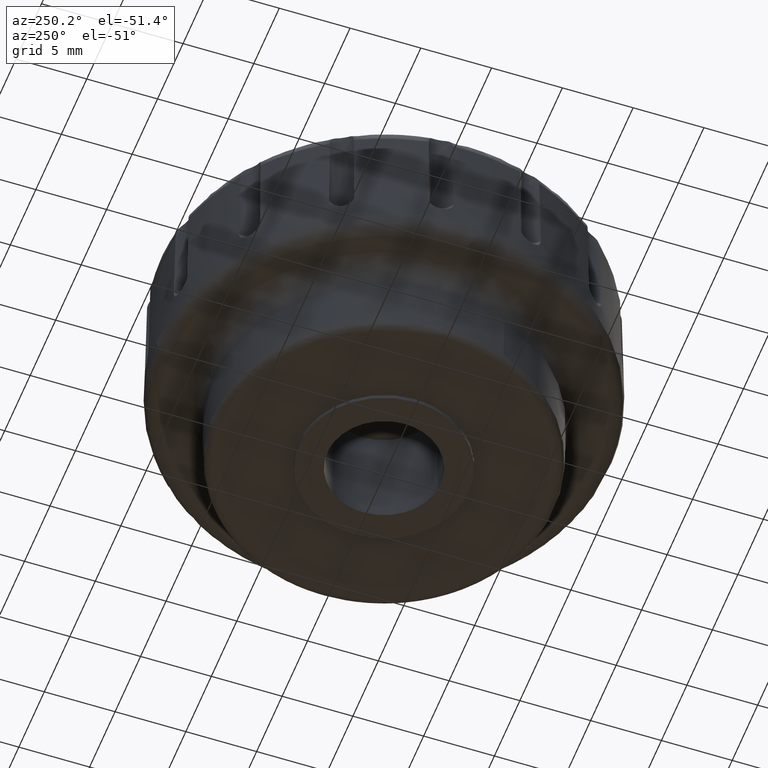
[diagram: clean part render]
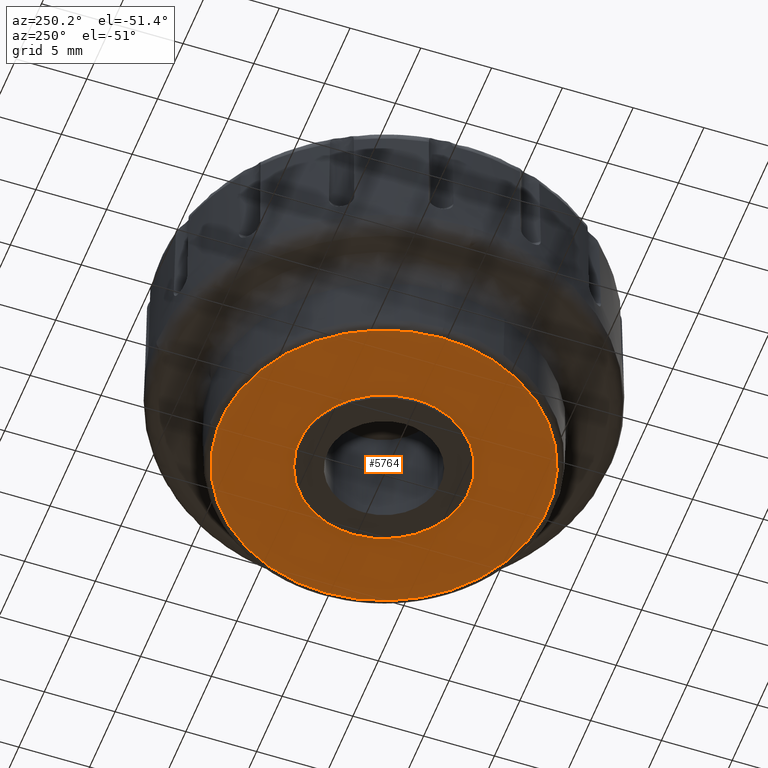
[diagram: same view with one face highlighted and labeled with its STEP entity id]
A machine part, auxiliary view. The second image highlights one B-rep face of the part: STEP entity #5764.
In plain terms, the highlighted face is a freeform B-spline surface patch.
Its self-contained STEP definition (entity closure, byte-faithful):
#910=CARTESIAN_POINT('',(-0.708198002740157,5.958055952469782,0.299992401041193));
#911=VERTEX_POINT('',#910);
#912=CARTESIAN_POINT('',(5.999997928657789,0.0,0.299992401042480));
#913=VERTEX_POINT('',#912);
#914=CARTESIAN_POINT('',(-0.708198002740157,5.958055952469782,0.299992401041193));
#915=CARTESIAN_POINT('',(-0.355340977032075,5.999997928657789,0.299992401042480));
#916=CARTESIAN_POINT('',(0.0,5.999997928657789,0.299992401042480));
#917=CARTESIAN_POINT('',(5.999997928657789,5.999997928657789,0.299992401042480));
#918=CARTESIAN_POINT('',(5.999997928657789,0.0,0.299992401042480));
#926=(BOUNDED_CURVE()B_SPLINE_CURVE(2,(#914,#915,#916,#917,#918),.UNSPECIFIED.,.F.,.U.)B_SPLINE_CURVE_WITH_KNOTS((3,2,3),(0.229562676632854,0.250000000000000,0.500000000000000),.UNSPECIFIED.)CURVE()GEOMETRIC_REPRESENTATION_ITEM()RATIONAL_B_SPLINE_CURVE((0.956027152306316,0.976056186300261,1.0,0.707106781186548,1.0))REPRESENTATION_ITEM(''));
#927=EDGE_CURVE('',#911,#913,#926,.T.);
#929=CARTESIAN_POINT('',(0.366286681719890,-5.988806993940671,0.299992401043059));
#930=VERTEX_POINT('',#929);
#931=CARTESIAN_POINT('',(5.999997928657789,0.0,0.299992401042480));
#932=CARTESIAN_POINT('',(5.999997928657788,-5.644238634919097,0.299992401042480));
#933=CARTESIAN_POINT('',(0.366286681719890,-5.988806993940672,0.299992401043059));
#941=(BOUNDED_CURVE()B_SPLINE_CURVE(2,(#931,#932,#933),.UNSPECIFIED.,.F.,.U.)B_SPLINE_CURVE_WITH_KNOTS((3,3),(0.500000000000000,0.739333089849386),.UNSPECIFIED.)CURVE()GEOMETRIC_REPRESENTATION_ITEM()RATIONAL_B_SPLINE_CURVE((1.0,0.719603843781777,0.976072315160341))REPRESENTATION_ITEM(''));
#942=EDGE_CURVE('',#913,#930,#941,.T.);
#1009=CARTESIAN_POINT('',(-5.999997928657789,0.0,0.299992401042480));
#1010=VERTEX_POINT('',#1009);
#1011=CARTESIAN_POINT('',(-5.999997928657789,0.0,0.299992401042480));
#1012=CARTESIAN_POINT('',(-5.999997928657789,5.329051765817948,0.299992401042480));
#1013=CARTESIAN_POINT('',(-0.708198002740157,5.958055952469782,0.299992401041193));
#1021=(BOUNDED_CURVE()B_SPLINE_CURVE(2,(#1011,#1012,#1013),.UNSPECIFIED.,.F.,.U.)B_SPLINE_CURVE_WITH_KNOTS((3,3),(0.0,0.229562676632854),.UNSPECIFIED.)CURVE()GEOMETRIC_REPRESENTATION_ITEM()RATIONAL_B_SPLINE_CURVE((1.0,0.731050594886286,0.956027152306316))REPRESENTATION_ITEM(''));
#1022=EDGE_CURVE('',#1010,#911,#1021,.T.);
#1056=CARTESIAN_POINT('',(0.366286681719890,-5.988806993940672,0.299992401043059));
#1057=CARTESIAN_POINT('',(0.183314295778719,-5.999997928657791,0.299992401042480));
#1058=CARTESIAN_POINT('',(0.0,-5.999997928657789,0.299992401042480));
#1059=CARTESIAN_POINT('',(-5.999997928657789,-5.999997928657789,0.299992401042480));
#1060=CARTESIAN_POINT('',(-5.999997928657789,0.0,0.299992401042480));
#1068=(BOUNDED_CURVE()B_SPLINE_CURVE(2,(#1056,#1057,#1058,#1059,#1060),.UNSPECIFIED.,.F.,.U.)B_SPLINE_CURVE_WITH_KNOTS((3,2,3),(0.739333089849386,0.750000000000000,1.0),.UNSPECIFIED.)CURVE()GEOMETRIC_REPRESENTATION_ITEM()RATIONAL_B_SPLINE_CURVE((0.976072315160341,0.987502937404771,1.0,0.707106781186548,1.0))REPRESENTATION_ITEM(''));
#1069=EDGE_CURVE('',#930,#1010,#1068,.T.);
#3045=CARTESIAN_POINT('',(0.802833341890459,11.484893728057450,0.299992401042480));
#3046=VERTEX_POINT('',#3045);
#3047=CARTESIAN_POINT('',(11.512919928657800,0.0,0.299992401042480));
#3048=VERTEX_POINT('',#3047);
#3049=CARTESIAN_POINT('',(0.802833341890459,11.484893728057452,0.299992401042480));
#3050=CARTESIAN_POINT('',(11.512919928657798,10.736222053049969,0.299992401042480));
#3051=CARTESIAN_POINT('',(11.512919928657800,0.0,0.299992401042480));
#3059=(BOUNDED_CURVE()B_SPLINE_CURVE(2,(#3049,#3050,#3051),.UNSPECIFIED.,.F.,.U.)B_SPLINE_CURVE_WITH_KNOTS((3,3),(0.262166313465722,0.500000000000000),.UNSPECIFIED.)CURVE()GEOMETRIC_REPRESENTATION_ITEM()RATIONAL_B_SPLINE_CURVE((0.972879876385255,0.721360504034823,1.0))REPRESENTATION_ITEM(''));
#3060=EDGE_CURVE('',#3046,#3048,#3059,.T.);
#3080=CARTESIAN_POINT('',(-11.512010919335809,0.144671811084941,0.299992401042481));
#3081=VERTEX_POINT('',#3080);
#3095=CARTESIAN_POINT('',(-11.512919928657800,0.0,0.299992401042480));
#3096=VERTEX_POINT('',#3095);
#3097=CARTESIAN_POINT('',(-11.512919928657800,0.0,0.299992401042480));
#3098=CARTESIAN_POINT('',(-11.512919928657801,0.072338761337874,0.299992401042480));
#3099=CARTESIAN_POINT('',(-11.512010919335802,0.144671811084941,0.299992401042481));
#3107=(BOUNDED_CURVE()B_SPLINE_CURVE(2,(#3097,#3098,#3099),.UNSPECIFIED.,.F.,.U.)B_SPLINE_CURVE_WITH_KNOTS((3,3),(0.0,0.002215704080012),.UNSPECIFIED.)CURVE()GEOMETRIC_REPRESENTATION_ITEM()RATIONAL_B_SPLINE_CURVE((1.0,0.997404141200269,0.994854295640008))REPRESENTATION_ITEM(''));
#3108=EDGE_CURVE('',#3096,#3081,#3107,.T.);
#3110=CARTESIAN_POINT('',(11.512919928657800,0.0,0.299992401042480));
#3111=CARTESIAN_POINT('',(11.512919928657800,-11.512919928657800,0.299992401042480));
#3112=CARTESIAN_POINT('',(0.0,-11.512919928657800,0.299992401042480));
#3113=CARTESIAN_POINT('',(-11.512919928657800,-11.512919928657800,0.299992401042480));
#3114=CARTESIAN_POINT('',(-11.512919928657800,0.0,0.299992401042480));
#3122=(BOUNDED_CURVE()B_SPLINE_CURVE(2,(#3110,#3111,#3112,#3113,#3114),.UNSPECIFIED.,.F.,.U.)B_SPLINE_CURVE_WITH_KNOTS((3,2,3),(0.500000000000000,0.750000000000000,1.0),.UNSPECIFIED.)CURVE()GEOMETRIC_REPRESENTATION_ITEM()RATIONAL_B_SPLINE_CURVE((1.0,0.707106781186547,1.0,0.707106781186547,1.0))REPRESENTATION_ITEM(''));
#3123=EDGE_CURVE('',#3048,#3096,#3122,.T.);
#3151=CARTESIAN_POINT('',(-11.512010919335802,0.144671811084941,0.299992401042481));
#3152=CARTESIAN_POINT('',(-11.369145777504764,11.512919928657801,0.299992401042480));
#3153=CARTESIAN_POINT('',(0.0,11.512919928657800,0.299992401042480));
#3154=CARTESIAN_POINT('',(0.401905855874503,11.512919928657803,0.299992401042480));
#3155=CARTESIAN_POINT('',(0.802833341890459,11.484893728057452,0.299992401042480));
#3163=(BOUNDED_CURVE()B_SPLINE_CURVE(2,(#3151,#3152,#3153,#3154,#3155),.UNSPECIFIED.,.F.,.U.)B_SPLINE_CURVE_WITH_KNOTS((3,2,3),(0.002215704080012,0.250000000000000,0.262166313465722),.UNSPECIFIED.)CURVE()GEOMETRIC_REPRESENTATION_ITEM()RATIONAL_B_SPLINE_CURVE((0.994854295640008,0.709702639986278,1.0,0.985746277151725,0.972879876385255))REPRESENTATION_ITEM(''));
#3164=EDGE_CURVE('',#3081,#3046,#3163,.T.);
#5747=CARTESIAN_POINT('',(-12.663061233352501,-12.662991958714960,0.299992401042480));
#5748=CARTESIAN_POINT('',(12.663061233352501,-12.662991958714960,0.299992401042480));
#5749=CARTESIAN_POINT('',(-12.663061233352490,12.661605079492110,0.299992401042480));
#5750=CARTESIAN_POINT('',(12.663061233352490,12.661605079492110,0.299992401042480));
#5751=B_SPLINE_SURFACE_WITH_KNOTS('',1,1,((#5747,#5749),(#5748,#5750)),.UNSPECIFIED.,.F.,.F.,.U.,(2,2),(2,2),(0.0,25.326122466704991),(0.0,25.324597038207060),.UNSPECIFIED.);
#5752=ORIENTED_EDGE('',*,*,#3108,.T.);
#5753=ORIENTED_EDGE('',*,*,#3164,.T.);
#5754=ORIENTED_EDGE('',*,*,#3060,.T.);
#5755=ORIENTED_EDGE('',*,*,#3123,.T.);
#5756=EDGE_LOOP('',(#5752,#5753,#5754,#5755));
#5757=FACE_OUTER_BOUND('',#5756,.T.);
#5758=ORIENTED_EDGE('',*,*,#942,.F.);
#5759=ORIENTED_EDGE('',*,*,#927,.F.);
#5760=ORIENTED_EDGE('',*,*,#1022,.F.);
#5761=ORIENTED_EDGE('',*,*,#1069,.F.);
#5762=EDGE_LOOP('',(#5758,#5759,#5760,#5761));
#5763=FACE_BOUND('',#5762,.T.);
#5764=ADVANCED_FACE('',(#5757,#5763),#5751,.F.);